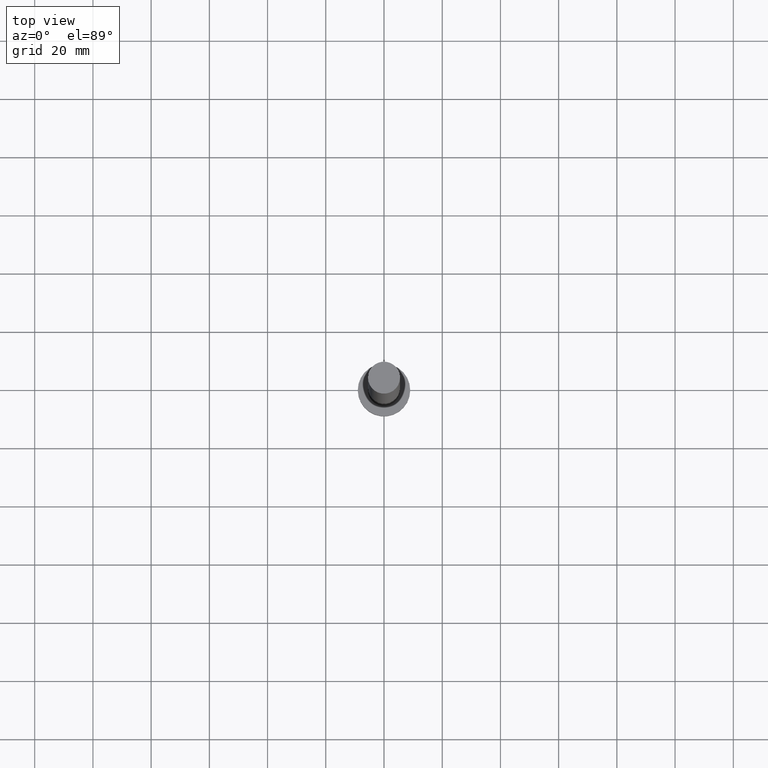
[diagram: clean part render]
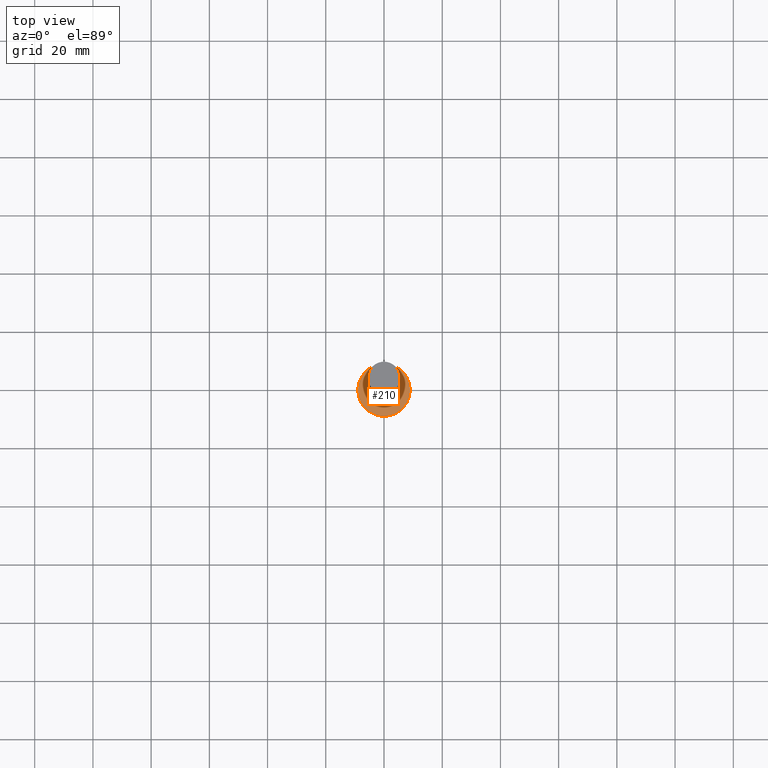
[diagram: same view with one face highlighted and labeled with its STEP entity id]
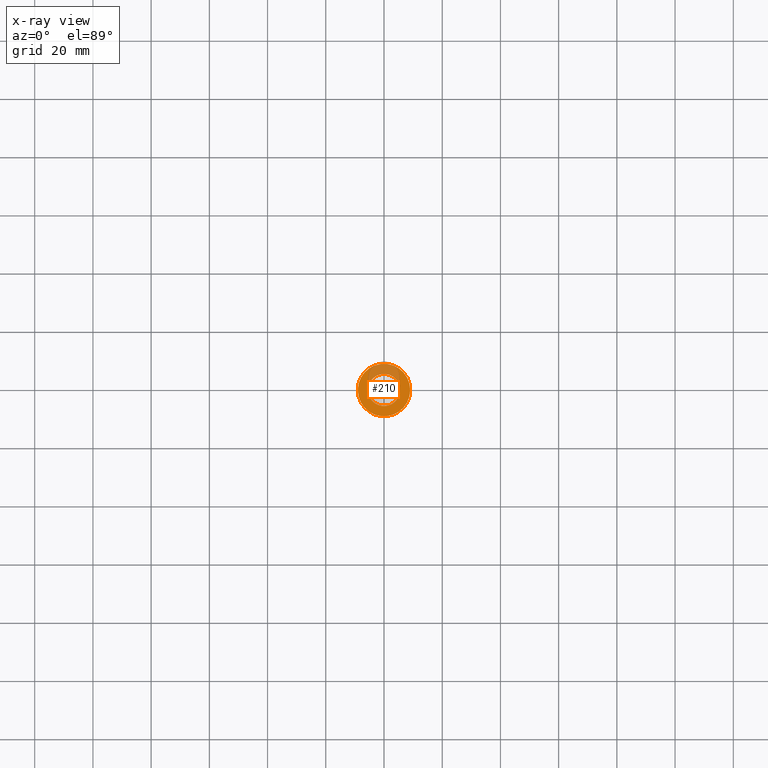
[diagram: x-ray of the same camera — body ghosted, the highlighted face saturated]
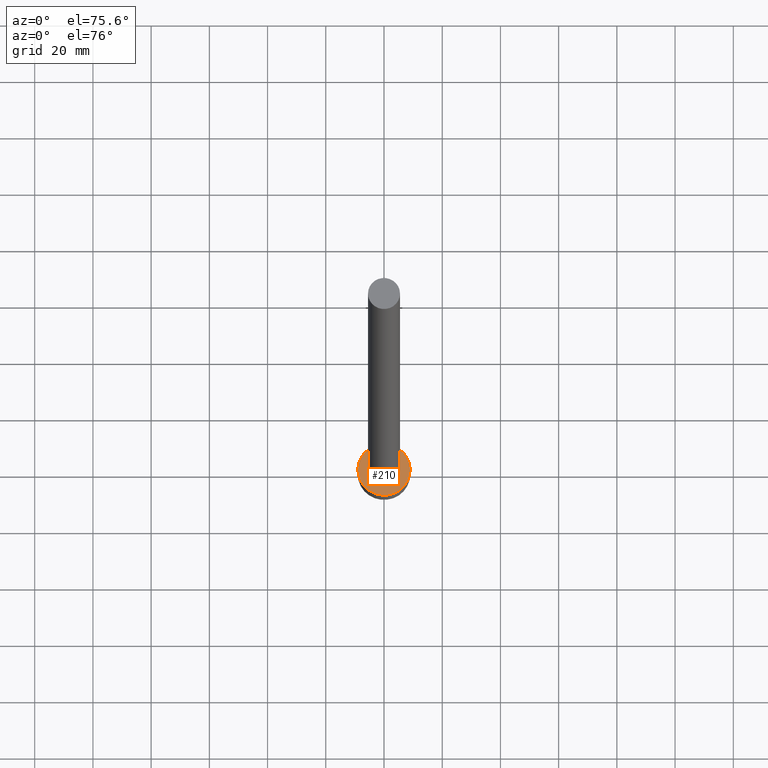
[diagram: same view with one face highlighted and labeled with its STEP entity id]
A machine part, top view. The second image highlights one B-rep face of the part: STEP entity #210.
The next image is the same camera in x-ray: the body ghosted, the highlighted face saturated — about 27% of this face is hidden behind the body in this view.
A second angle (auxiliary view) of the same face is appended — the face is thin or edge-on in the first view.
In plain terms, the highlighted planar face has unit normal (0, 0, 1).
Its self-contained STEP definition (entity closure, byte-faithful):
#7 = CARTESIAN_POINT ( 'NONE',  ( -9.000000000000000000, 0.000000000000000000, 6.500000000000000000 ) ) ;
#8 = CIRCLE ( 'NONE', #146, 5.500000000000000000 ) ;
#12 = EDGE_CURVE ( 'NONE', #180, #161, #230, .T. ) ;
#15 = PLANE ( 'NONE',  #167 ) ;
#16 = CARTESIAN_POINT ( 'NONE',  ( 0.000000000000000000, 0.000000000000000000, 6.500000000000000000 ) ) ;
#17 = ORIENTED_EDGE ( 'NONE', *, *, #152, .F. ) ;
#24 = CARTESIAN_POINT ( 'NONE',  ( 0.000000000000000000, 0.000000000000000000, 6.500000000000000000 ) ) ;
#28 = CARTESIAN_POINT ( 'NONE',  ( 0.000000000000000000, 0.000000000000000000, 6.500000000000000000 ) ) ;
#29 = FACE_OUTER_BOUND ( 'NONE', #212, .T. ) ;
#31 = DIRECTION ( 'NONE',  ( 0.000000000000000000, 0.000000000000000000, 1.000000000000000000 ) ) ;
#34 = DIRECTION ( 'NONE',  ( 0.000000000000000000, 0.000000000000000000, 1.000000000000000000 ) ) ;
#35 = CARTESIAN_POINT ( 'NONE',  ( 5.500000000000000000, 6.735557395310442023E-16, 6.500000000000000000 ) ) ;
#38 = AXIS2_PLACEMENT_3D ( 'NONE', #28, #34, #189 ) ;
#51 = DIRECTION ( 'NONE',  ( 1.000000000000000000, 0.000000000000000000, 0.000000000000000000 ) ) ;
#65 = DIRECTION ( 'NONE',  ( 1.000000000000000000, 0.000000000000000000, 0.000000000000000000 ) ) ;
#80 = DIRECTION ( 'NONE',  ( 0.000000000000000000, 0.000000000000000000, 1.000000000000000000 ) ) ;
#86 = DIRECTION ( 'NONE',  ( 0.000000000000000000, 0.000000000000000000, 1.000000000000000000 ) ) ;
#89 = ORIENTED_EDGE ( 'NONE', *, *, #91, .T. ) ;
#91 = EDGE_CURVE ( 'NONE', #161, #180, #109, .T. ) ;
#109 = CIRCLE ( 'NONE', #179, 9.000000000000000000 ) ;
#112 = ORIENTED_EDGE ( 'NONE', *, *, #12, .T. ) ;
#124 = CIRCLE ( 'NONE', #137, 5.500000000000000000 ) ;
#125 = CARTESIAN_POINT ( 'NONE',  ( -5.500000000000000000, 0.000000000000000000, 6.500000000000000000 ) ) ;
#133 = ORIENTED_EDGE ( 'NONE', *, *, #219, .F. ) ;
#137 = AXIS2_PLACEMENT_3D ( 'NONE', #24, #139, #158 ) ;
#139 = DIRECTION ( 'NONE',  ( 0.000000000000000000, 0.000000000000000000, 1.000000000000000000 ) ) ;
#146 = AXIS2_PLACEMENT_3D ( 'NONE', #16, #80, #65 ) ;
#152 = EDGE_CURVE ( 'NONE', #236, #199, #124, .T. ) ;
#158 = DIRECTION ( 'NONE',  ( 1.000000000000000000, 0.000000000000000000, 0.000000000000000000 ) ) ;
#161 = VERTEX_POINT ( 'NONE', #7 ) ;
#165 = FACE_BOUND ( 'NONE', #242, .T. ) ;
#167 = AXIS2_PLACEMENT_3D ( 'NONE', #249, #86, #227 ) ;
#179 = AXIS2_PLACEMENT_3D ( 'NONE', #229, #31, #51 ) ;
#180 = VERTEX_POINT ( 'NONE', #182 ) ;
#182 = CARTESIAN_POINT ( 'NONE',  ( 9.000000000000000000, 1.102182119232617517E-15, 6.500000000000000000 ) ) ;
#189 = DIRECTION ( 'NONE',  ( 1.000000000000000000, 0.000000000000000000, 0.000000000000000000 ) ) ;
#199 = VERTEX_POINT ( 'NONE', #125 ) ;
#210 = ADVANCED_FACE ( 'NONE', ( #165, #29 ), #15, .T. ) ;
#212 = EDGE_LOOP ( 'NONE', ( #89, #112 ) ) ;
#219 = EDGE_CURVE ( 'NONE', #199, #236, #8, .T. ) ;
#227 = DIRECTION ( 'NONE',  ( 1.000000000000000000, 0.000000000000000000, -0.000000000000000000 ) ) ;
#229 = CARTESIAN_POINT ( 'NONE',  ( 0.000000000000000000, 0.000000000000000000, 6.500000000000000000 ) ) ;
#230 = CIRCLE ( 'NONE', #38, 9.000000000000000000 ) ;
#236 = VERTEX_POINT ( 'NONE', #35 ) ;
#242 = EDGE_LOOP ( 'NONE', ( #133, #17 ) ) ;
#249 = CARTESIAN_POINT ( 'NONE',  ( 0.000000000000000000, 0.000000000000000000, 6.500000000000000000 ) ) ;